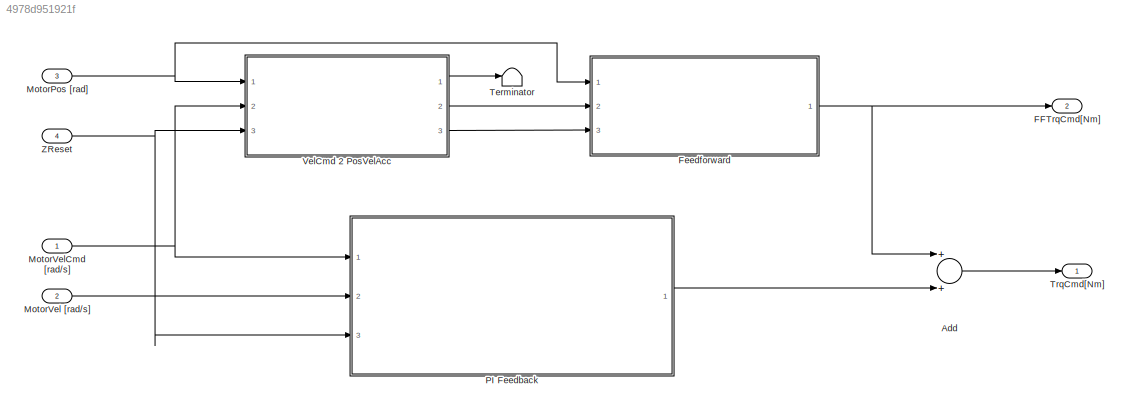
MODEL slx_4978d951921f
KIND model
CONFIG AbsTol = auto
CONFIG FixedStep = si.tsv
CONFIG MaxStep = auto
CONFIG MinStep = auto
CONFIG RelTol = 1e-3
CONFIG SampleTimeConstraint = Unconstrained
CONFIG Solver = FixedStepDiscrete
CONFIG SolverMode = Auto
CONFIG SolverName = FixedStepDiscrete
CONFIG StartTime = 0.0
CONFIG StopTime = 10.0
WORKSPACE source: MATLAB code (in-file)
WORKSPACE rsi = evalin('base', 'si.ri{1}')
BLOCK [Sum] Add
  InputSameDT = off
  OutDataTypeStr = Inherit: Inherit via internal rule
  Ports = [2, 1]
  SaturateOnIntegerOverflow = off
BLOCK [Outport] FFTrqCmd[Nm]
  IconDisplay = Port number
  Port = 2
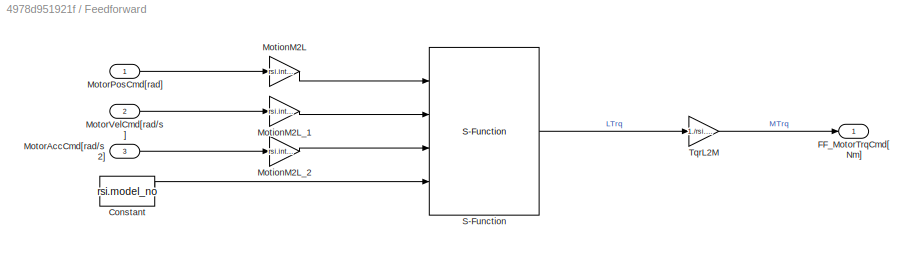
BLOCK [SubSystem] Feedforward
  Ports = [3, 1]
  RequestExecContextInheritance = off
  Variant = off
BLOCK [Constant] Feedforward/Constant
  Value = rsi.model_no
BLOCK [Outport] Feedforward/FF_MotorTrqCmd[Nm]
  IconDisplay = Port number
BLOCK [Gain] Feedforward/MotionM2L
  Gain = rsi.interaction
  Multiplication = Matrix(K*u)
  OutDataTypeStr = Inherit: Inherit via internal rule
  ParamDataTypeStr = Inherit: Inherit via internal rule
  SaturateOnIntegerOverflow = off
BLOCK [Gain] Feedforward/MotionM2L_1
  Gain = rsi.interaction
  Multiplication = Matrix(K*u)
  OutDataTypeStr = Inherit: Inherit via internal rule
  ParamDataTypeStr = Inherit: Inherit via internal rule
  SaturateOnIntegerOverflow = off
BLOCK [Gain] Feedforward/MotionM2L_2
  Gain = rsi.interaction
  Multiplication = Matrix(K*u)
  OutDataTypeStr = Inherit: Inherit via internal rule
  ParamDataTypeStr = Inherit: Inherit via internal rule
  SaturateOnIntegerOverflow = off
BLOCK [Inport] Feedforward/MotorAccCmd[rad//s2]
  IconDisplay = Port number
  Port = 3
BLOCK [Inport] Feedforward/MotorPosCmd[rad]
  IconDisplay = Port number
BLOCK [Inport] Feedforward/MotorVelCmd[rad//s]
  IconDisplay = Port number
  Port = 2
BLOCK [S-Function] Feedforward/S-Function
  EnableBusSupport = off
  FunctionName = CMT_TRQ_sfun
  Parameters = si.tsv
  Ports = [4, 1]
  SFunctionDeploymentMode = off
  SFunctionModules = 'CMT_TRQ'
BLOCK [Gain] Feedforward/TqrL2M
  Gain = 1./rsi.Rratio.*rsi.Motor2TP_sign
  OutDataTypeStr = Inherit: Inherit via internal rule
  ParamDataTypeStr = Inherit: Inherit via internal rule
  SaturateOnIntegerOverflow = off
BLOCK [Inport] MotorPos [rad]
  IconDisplay = Port number
  Port = 3
  PortDimensions = 6
BLOCK [Inport] MotorVel [rad//s]
  IconDisplay = Port number
  Port = 2
  PortDimensions = 6
BLOCK [Inport] MotorVelCmd [rad//s]
  IconDisplay = Port number
  PortDimensions = 6
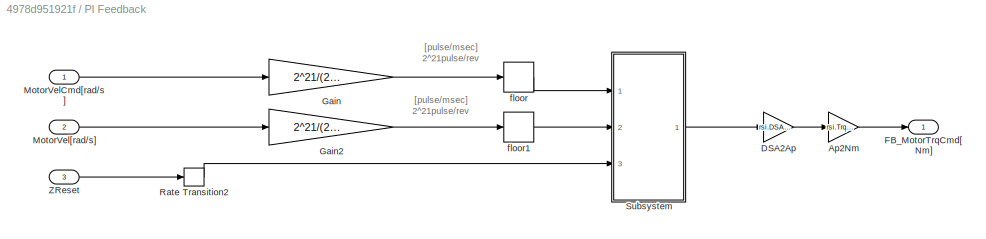
BLOCK [SubSystem] PI Feedback
  Ports = [3, 1]
  RequestExecContextInheritance = off
  Variant = off
BLOCK [Gain] PI Feedback/Ap2Nm
  Gain = rsi.TrqCons
  OutDataTypeStr = Inherit: Inherit via internal rule
  ParamDataTypeStr = Inherit: Inherit via internal rule
  SaturateOnIntegerOverflow = off
BLOCK [Gain] PI Feedback/DSA2Ap
  Gain = rsi.DSA2Ap
  OutDataTypeStr = Inherit: Inherit via internal rule
  ParamDataTypeStr = Inherit: Inherit via internal rule
  SaturateOnIntegerOverflow = off
BLOCK [Outport] PI Feedback/FB_MotorTrqCmd[Nm]
  IconDisplay = Port number
BLOCK [Gain] PI Feedback/Gain
  Gain = 2^21/(2*pi)/1000
BLOCK [Gain] PI Feedback/Gain2
  Gain = 2^21/(2*pi)/1000
BLOCK [Inport] PI Feedback/MotorVelCmd[rad//s]
  IconDisplay = Port number
BLOCK [Inport] PI Feedback/MotorVel[rad//s]
  IconDisplay = Port number
  Port = 2
BLOCK [RateTransition] PI Feedback/Rate Transition2
  OutPortSampleTime = si.tsv
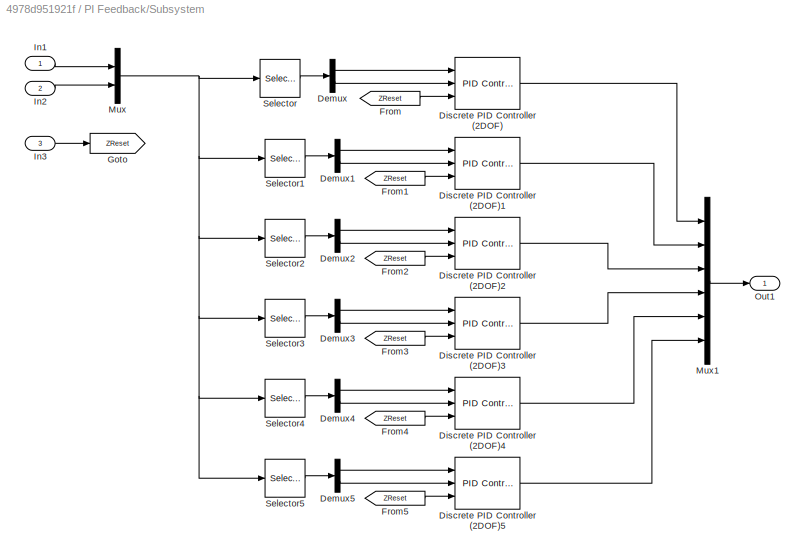
BLOCK [SubSystem] PI Feedback/Subsystem
  Ports = [3, 1]
  RequestExecContextInheritance = off
  Variant = off
BLOCK [Demux] PI Feedback/Subsystem/Demux
  DisplayOption = bar
  Outputs = 2
  Ports = [1, 2]
BLOCK [Demux] PI Feedback/Subsystem/Demux1
  DisplayOption = bar
  Outputs = 2
  Ports = [1, 2]
BLOCK [Demux] PI Feedback/Subsystem/Demux2
  DisplayOption = bar
  Outputs = 2
  Ports = [1, 2]
BLOCK [Demux] PI Feedback/Subsystem/Demux3
  DisplayOption = bar
  Outputs = 2
  Ports = [1, 2]
BLOCK [Demux] PI Feedback/Subsystem/Demux4
  DisplayOption = bar
  Outputs = 2
  Ports = [1, 2]
BLOCK [Demux] PI Feedback/Subsystem/Demux5
  DisplayOption = bar
  Outputs = 2
  Ports = [1, 2]
BLOCK [Reference] PI Feedback/Subsystem/Discrete PID Controller (2DOF)  REF=simulink/Continuous/PID Controller (2DOF)
  Ports = [3, 1]
  SourceBlock = simulink/Continuous/PID Controller (2DOF)
  SourceType = PID 2dof
BLOCK [Reference] PI Feedback/Subsystem/Discrete PID Controller (2DOF)1  REF=simulink/Continuous/PID Controller (2DOF)
  Ports = [3, 1]
  SourceBlock = simulink/Continuous/PID Controller (2DOF)
  SourceType = PID 2dof
BLOCK [Reference] PI Feedback/Subsystem/Discrete PID Controller (2DOF)2  REF=simulink/Continuous/PID Controller (2DOF)
  Ports = [3, 1]
  SourceBlock = simulink/Continuous/PID Controller (2DOF)
  SourceType = PID 2dof
BLOCK [Reference] PI Feedback/Subsystem/Discrete PID Controller (2DOF)3  REF=simulink/Continuous/PID Controller (2DOF)
  Ports = [3, 1]
  SourceBlock = simulink/Continuous/PID Controller (2DOF)
  SourceType = PID 2dof
BLOCK [Reference] PI Feedback/Subsystem/Discrete PID Controller (2DOF)4  REF=simulink/Continuous/PID Controller (2DOF)
  Ports = [3, 1]
  SourceBlock = simulink/Continuous/PID Controller (2DOF)
  SourceType = PID 2dof
BLOCK [Reference] PI Feedback/Subsystem/Discrete PID Controller (2DOF)5  REF=simulink/Continuous/PID Controller (2DOF)
  Ports = [3, 1]
  SourceBlock = simulink/Continuous/PID Controller (2DOF)
  SourceType = PID 2dof
BLOCK [From] PI Feedback/Subsystem/From
  GotoTag = ZReset
BLOCK [From] PI Feedback/Subsystem/From1
  GotoTag = ZReset
BLOCK [From] PI Feedback/Subsystem/From2
  GotoTag = ZReset
BLOCK [From] PI Feedback/Subsystem/From3
  GotoTag = ZReset
BLOCK [From] PI Feedback/Subsystem/From4
  GotoTag = ZReset
BLOCK [From] PI Feedback/Subsystem/From5
  GotoTag = ZReset
BLOCK [Goto] PI Feedback/Subsystem/Goto
  GotoTag = ZReset
BLOCK [Inport] PI Feedback/Subsystem/In1
  IconDisplay = Port number
BLOCK [Inport] PI Feedback/Subsystem/In2
  IconDisplay = Port number
  Port = 2
BLOCK [Inport] PI Feedback/Subsystem/In3
  IconDisplay = Port number
  Port = 3
BLOCK [Mux] PI Feedback/Subsystem/Mux
  DisplayOption = bar
  Inputs = 2
  Ports = [2, 1]
BLOCK [Mux] PI Feedback/Subsystem/Mux1
  DisplayOption = bar
  Inputs = 6
  Ports = [6, 1]
BLOCK [Outport] PI Feedback/Subsystem/Out1
  IconDisplay = Port number
BLOCK [Selector] PI Feedback/Subsystem/Selector
  IndexOptions = Index vector (dialog)
  Indices = [1 7]
  InputPortWidth = 12
  OutputSizes = 1
  Ports = [1, 1]
BLOCK [Selector] PI Feedback/Subsystem/Selector1
  IndexOptions = Index vector (dialog)
  Indices = [2 8]
  InputPortWidth = 12
  OutputSizes = 1
  Ports = [1, 1]
BLOCK [Selector] PI Feedback/Subsystem/Selector2
  IndexOptions = Index vector (dialog)
  Indices = [3 9]
  InputPortWidth = 12
  OutputSizes = 1
  Ports = [1, 1]
BLOCK [Selector] PI Feedback/Subsystem/Selector3
  IndexOptions = Index vector (dialog)
  Indices = [4 10]
  InputPortWidth = 12
  OutputSizes = 1
  Ports = [1, 1]
BLOCK [Selector] PI Feedback/Subsystem/Selector4
  IndexOptions = Index vector (dialog)
  Indices = [5 11]
  InputPortWidth = 12
  OutputSizes = 1
  Ports = [1, 1]
BLOCK [Selector] PI Feedback/Subsystem/Selector5
  IndexOptions = Index vector (dialog)
  Indices = [6 12]
  InputPortWidth = 12
  OutputSizes = 1
  Ports = [1, 1]
BLOCK [Inport] PI Feedback/ZReset
  IconDisplay = Port number
  Port = 3
BLOCK [Rounding] PI Feedback/floor
BLOCK [Rounding] PI Feedback/floor1
BLOCK [Terminator] Terminator
BLOCK [Outport] TrqCmd[Nm]
  IconDisplay = Port number
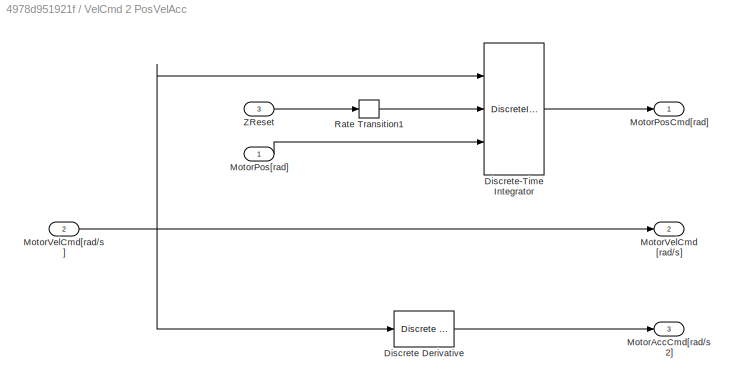
BLOCK [SubSystem] VelCmd 2 PosVelAcc
  Ports = [3, 3]
  RequestExecContextInheritance = off
  Variant = off
BLOCK [Reference] VelCmd 2 PosVelAcc/Discrete Derivative  REF=simulink/Discrete/Discrete Derivative
  Ports = [1, 1]
  SourceBlock = simulink/Discrete/Discrete Derivative
  SourceType = Discrete Derivative
BLOCK [DiscreteIntegrator] VelCmd 2 PosVelAcc/Discrete-Time Integrator
  ExternalReset = level
  ICPrevOutput = DiscIntNeverNeededParam
  ICPrevScaledInput = DiscIntNeverNeededParam
  InitialConditionSetting = State (most efficient)
  InitialConditionSource = external
  Ports = [3, 1]
  SampleTime = si.tsv
BLOCK [Outport] VelCmd 2 PosVelAcc/MotorAccCmd[rad//s2]
  IconDisplay = Port number
  Port = 3
BLOCK [Outport] VelCmd 2 PosVelAcc/MotorPosCmd[rad]
  IconDisplay = Port number
BLOCK [Inport] VelCmd 2 PosVelAcc/MotorPos[rad]
  IconDisplay = Port number
BLOCK [Outport] VelCmd 2 PosVelAcc/MotorVelCmd [rad//s]
  IconDisplay = Port number
  Port = 2
BLOCK [Inport] VelCmd 2 PosVelAcc/MotorVelCmd[rad//s]
  IconDisplay = Port number
  Port = 2
BLOCK [RateTransition] VelCmd 2 PosVelAcc/Rate Transition1
  OutPortSampleTime = si.tsv
BLOCK [Inport] VelCmd 2 PosVelAcc/ZReset
  IconDisplay = Port number
  Port = 3
BLOCK [Inport] ZReset
  IconDisplay = Port number
  OutDataTypeStr = boolean
  Port = 4
ANNOTATION PI Feedback: [pulse/msec] 2^21pulse/rev
LINE Add:1 -> TrqCmd[Nm]:1
LINE Feedforward/Constant:1 -> Feedforward/S-Function:4
LINE Feedforward/MotionM2L:1 -> Feedforward/S-Function:1
LINE Feedforward/MotionM2L_1:1 -> Feedforward/S-Function:2
LINE Feedforward/MotionM2L_2:1 -> Feedforward/S-Function:3
LINE Feedforward/MotorAccCmd[rad//s2]:1 -> Feedforward/MotionM2L_2:1
LINE Feedforward/MotorPosCmd[rad]:1 -> Feedforward/MotionM2L:1
LINE Feedforward/MotorVelCmd[rad//s]:1 -> Feedforward/MotionM2L_1:1
LINE Feedforward/S-Function:1 -> Feedforward/TqrL2M:1
LINE Feedforward/TqrL2M:1 -> Feedforward/FF_MotorTrqCmd[Nm]:1
NET Feedforward:1 -> Add:1, FFTrqCmd[Nm]:1
NET MotorPos [rad]:1 -> Feedforward:1, VelCmd 2 PosVelAcc:1
LINE MotorVel [rad//s]:1 -> PI Feedback:2
NET MotorVelCmd [rad//s]:1 -> PI Feedback:1, VelCmd 2 PosVelAcc:2
LINE PI Feedback/Ap2Nm:1 -> PI Feedback/FB_MotorTrqCmd[Nm]:1
LINE PI Feedback/DSA2Ap:1 -> PI Feedback/Ap2Nm:1
LINE PI Feedback/Gain2:1 -> PI Feedback/floor1:1
LINE PI Feedback/Gain:1 -> PI Feedback/floor:1
LINE PI Feedback/MotorVelCmd[rad//s]:1 -> PI Feedback/Gain:1
LINE PI Feedback/MotorVel[rad//s]:1 -> PI Feedback/Gain2:1
LINE PI Feedback/Rate Transition2:1 -> PI Feedback/Subsystem:3
LINE PI Feedback/Subsystem/Demux1:1 -> PI Feedback/Subsystem/Discrete PID Controller (2DOF)1:1
LINE PI Feedback/Subsystem/Demux1:2 -> PI Feedback/Subsystem/Discrete PID Controller (2DOF)1:2
LINE PI Feedback/Subsystem/Demux2:1 -> PI Feedback/Subsystem/Discrete PID Controller (2DOF)2:1
LINE PI Feedback/Subsystem/Demux2:2 -> PI Feedback/Subsystem/Discrete PID Controller (2DOF)2:2
LINE PI Feedback/Subsystem/Demux3:1 -> PI Feedback/Subsystem/Discrete PID Controller (2DOF)3:1
LINE PI Feedback/Subsystem/Demux3:2 -> PI Feedback/Subsystem/Discrete PID Controller (2DOF)3:2
LINE PI Feedback/Subsystem/Demux4:1 -> PI Feedback/Subsystem/Discrete PID Controller (2DOF)4:1
LINE PI Feedback/Subsystem/Demux4:2 -> PI Feedback/Subsystem/Discrete PID Controller (2DOF)4:2
LINE PI Feedback/Subsystem/Demux5:1 -> PI Feedback/Subsystem/Discrete PID Controller (2DOF)5:1
LINE PI Feedback/Subsystem/Demux5:2 -> PI Feedback/Subsystem/Discrete PID Controller (2DOF)5:2
LINE PI Feedback/Subsystem/Demux:1 -> PI Feedback/Subsystem/Discrete PID Controller (2DOF):1
LINE PI Feedback/Subsystem/Demux:2 -> PI Feedback/Subsystem/Discrete PID Controller (2DOF):2
LINE PI Feedback/Subsystem/Discrete PID Controller (2DOF)1:1 -> PI Feedback/Subsystem/Mux1:2
LINE PI Feedback/Subsystem/Discrete PID Controller (2DOF)2:1 -> PI Feedback/Subsystem/Mux1:3
LINE PI Feedback/Subsystem/Discrete PID Controller (2DOF)3:1 -> PI Feedback/Subsystem/Mux1:4
LINE PI Feedback/Subsystem/Discrete PID Controller (2DOF)4:1 -> PI Feedback/Subsystem/Mux1:5
LINE PI Feedback/Subsystem/Discrete PID Controller (2DOF)5:1 -> PI Feedback/Subsystem/Mux1:6
LINE PI Feedback/Subsystem/Discrete PID Controller (2DOF):1 -> PI Feedback/Subsystem/Mux1:1
LINE PI Feedback/Subsystem/From1:1 -> PI Feedback/Subsystem/Discrete PID Controller (2DOF)1:3
LINE PI Feedback/Subsystem/From2:1 -> PI Feedback/Subsystem/Discrete PID Controller (2DOF)2:3
LINE PI Feedback/Subsystem/From3:1 -> PI Feedback/Subsystem/Discrete PID Controller (2DOF)3:3
LINE PI Feedback/Subsystem/From4:1 -> PI Feedback/Subsystem/Discrete PID Controller (2DOF)4:3
LINE PI Feedback/Subsystem/From5:1 -> PI Feedback/Subsystem/Discrete PID Controller (2DOF)5:3
LINE PI Feedback/Subsystem/From:1 -> PI Feedback/Subsystem/Discrete PID Controller (2DOF):3
LINE PI Feedback/Subsystem/In1:1 -> PI Feedback/Subsystem/Mux:1
LINE PI Feedback/Subsystem/In2:1 -> PI Feedback/Subsystem/Mux:2
LINE PI Feedback/Subsystem/In3:1 -> PI Feedback/Subsystem/Goto:1
LINE PI Feedback/Subsystem/Mux1:1 -> PI Feedback/Subsystem/Out1:1
NET PI Feedback/Subsystem/Mux:1 -> PI Feedback/Subsystem/Selector1:1, PI Feedback/Subsystem/Selector2:1, PI Feedback/Subsystem/Selector3:1, PI Feedback/Subsystem/Selector4:1, PI Feedback/Subsystem/Selector5:1, PI Feedback/Subsystem/Selector:1
LINE PI Feedback/Subsystem/Selector1:1 -> PI Feedback/Subsystem/Demux1:1
LINE PI Feedback/Subsystem/Selector2:1 -> PI Feedback/Subsystem/Demux2:1
LINE PI Feedback/Subsystem/Selector3:1 -> PI Feedback/Subsystem/Demux3:1
LINE PI Feedback/Subsystem/Selector4:1 -> PI Feedback/Subsystem/Demux4:1
LINE PI Feedback/Subsystem/Selector5:1 -> PI Feedback/Subsystem/Demux5:1
LINE PI Feedback/Subsystem/Selector:1 -> PI Feedback/Subsystem/Demux:1
LINE PI Feedback/Subsystem:1 -> PI Feedback/DSA2Ap:1
LINE PI Feedback/ZReset:1 -> PI Feedback/Rate Transition2:1
LINE PI Feedback/floor1:1 -> PI Feedback/Subsystem:2
LINE PI Feedback/floor:1 -> PI Feedback/Subsystem:1
LINE PI Feedback:1 -> Add:2
LINE VelCmd 2 PosVelAcc/Discrete Derivative:1 -> VelCmd 2 PosVelAcc/MotorAccCmd[rad//s2]:1
LINE VelCmd 2 PosVelAcc/Discrete-Time Integrator:1 -> VelCmd 2 PosVelAcc/MotorPosCmd[rad]:1
LINE VelCmd 2 PosVelAcc/MotorPos[rad]:1 -> VelCmd 2 PosVelAcc/Discrete-Time Integrator:3
NET VelCmd 2 PosVelAcc/MotorVelCmd[rad//s]:1 -> VelCmd 2 PosVelAcc/Discrete Derivative:1, VelCmd 2 PosVelAcc/Discrete-Time Integrator:1, VelCmd 2 PosVelAcc/MotorVelCmd [rad//s]:1
LINE VelCmd 2 PosVelAcc/Rate Transition1:1 -> VelCmd 2 PosVelAcc/Discrete-Time Integrator:2
LINE VelCmd 2 PosVelAcc/ZReset:1 -> VelCmd 2 PosVelAcc/Rate Transition1:1
LINE VelCmd 2 PosVelAcc:1 -> Terminator:1
LINE VelCmd 2 PosVelAcc:2 -> Feedforward:2
LINE VelCmd 2 PosVelAcc:3 -> Feedforward:3
NET ZReset:1 -> PI Feedback:3, VelCmd 2 PosVelAcc:3
note: NET lines group one-source signal fan-out (src -> all destinations, sorted); 1:1 wires keep LINE
